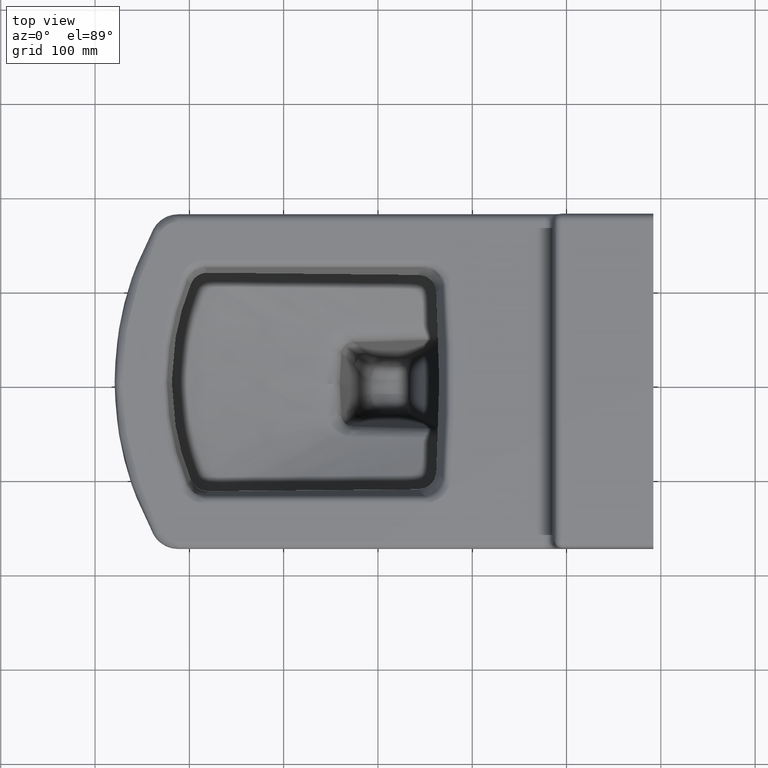
[diagram: clean part render]
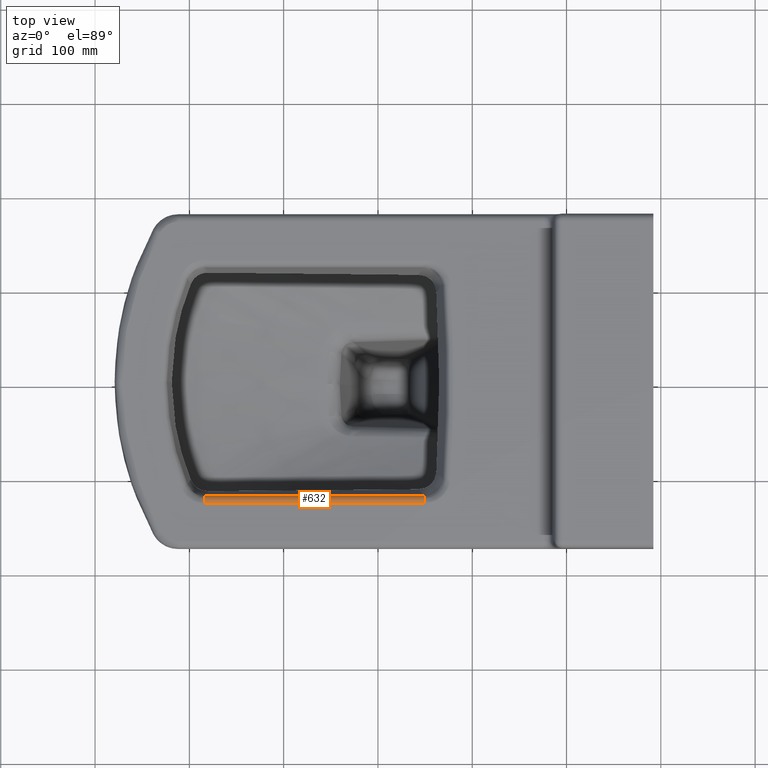
[diagram: same view with one face highlighted and labeled with its STEP entity id]
A machine part, top view. The second image highlights one B-rep face of the part: STEP entity #632.
In plain terms, the highlighted cylindrical surface (edge-blend (fillet) strip) has radius 8 mm, axis along (-1, 0, 0).
Its self-contained STEP definition (entity closure, byte-faithful):
#221=CYLINDRICAL_SURFACE('',#3378,8.);
#309=CIRCLE('',#3376,8.);
#310=CIRCLE('',#3377,8.);
#349=LINE('',#4231,#405);
#379=LINE('',#12762,#437);
#405=VECTOR('',#3460,1.);
#437=VECTOR('',#3684,1.);
#632=ADVANCED_FACE('',(#887),#221,.T.);
#887=FACE_OUTER_BOUND('',#1096,.T.);
#1096=EDGE_LOOP('',(#2056,#2057,#2058,#2059));
#2056=ORIENTED_EDGE('',*,*,#2900,.F.);
#2057=ORIENTED_EDGE('',*,*,#2490,.T.);
#2058=ORIENTED_EDGE('',*,*,#2901,.T.);
#2059=ORIENTED_EDGE('',*,*,#2838,.T.);
#2186=VERTEX_POINT('',#4230);
#2187=VERTEX_POINT('',#4232);
#2383=VERTEX_POINT('',#12692);
#2386=VERTEX_POINT('',#12731);
#2490=EDGE_CURVE('',#2187,#2186,#349,.T.);
#2838=EDGE_CURVE('',#2386,#2383,#379,.T.);
#2900=EDGE_CURVE('',#2187,#2383,#309,.T.);
#2901=EDGE_CURVE('',#2186,#2386,#310,.T.);
#3376=AXIS2_PLACEMENT_3D('',#16664,#3726,#3727);
#3377=AXIS2_PLACEMENT_3D('',#16695,#3728,#3729);
#3378=AXIS2_PLACEMENT_3D('',#16696,#3730,#3731);
#3460=DIRECTION('',(1.,0.,0.));
#3684=DIRECTION('',(-1.,0.,0.));
#3726=DIRECTION('',(-1.,-7.06876706443319E-15,0.));
#3727=DIRECTION('',(6.93889390390723E-15,-1.,0.));
#3728=DIRECTION('',(-1.,5.40760680429144E-13,0.));
#3729=DIRECTION('',(-5.41233724504764E-13,-1.,0.));
#3730=DIRECTION('',(-1.,0.,0.));
#3731=DIRECTION('',(0.,0.,1.));
#4230=CARTESIAN_POINT('',(-150.744227709686,-128.907478860392,-2.67875172229576));
#4231=CARTESIAN_POINT('',(-149.573007929239,-128.907478860392,-2.67875172229576));
#4232=CARTESIAN_POINT('',(-383.69145226715,-128.907478860392,-2.67875172229576));
#12692=CARTESIAN_POINT('',(-383.69145226715,-121.05446139281,-9.1522797592834));
#12731=CARTESIAN_POINT('',(-150.744227709686,-121.054461392811,-9.1522797592819));
#12762=CARTESIAN_POINT('',(-384.530160452245,-121.05446139281,-9.1522797592834));
#16664=CARTESIAN_POINT('',(-383.69145226715,-128.907478860392,-10.6787517222958));
#16695=CARTESIAN_POINT('',(-150.744227709686,-128.907478860392,-10.6787517222958));
#16696=CARTESIAN_POINT('',(-129.314293544578,-128.907478860392,-10.6787517222958));